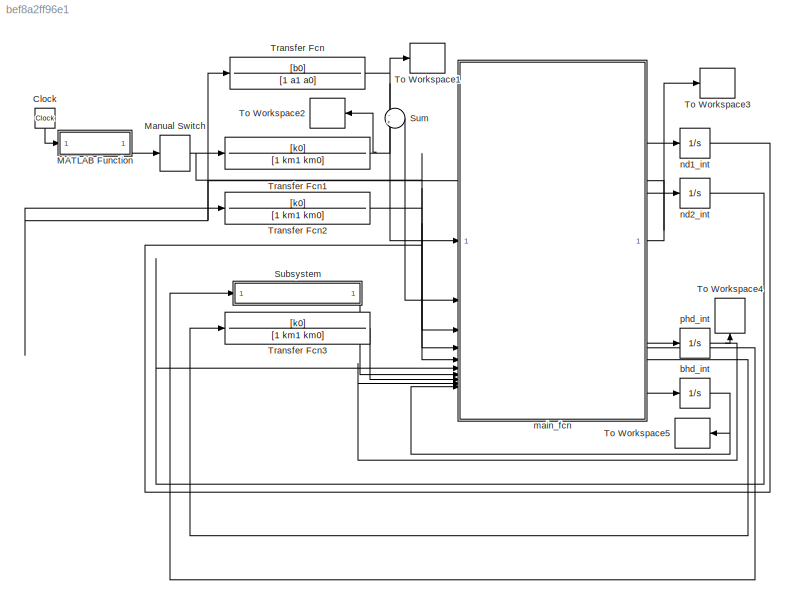
MODEL slx_bef8a2ff96e1
KIND model
CONFIG AbsTol = auto
CONFIG EnableMultiTasking = off
CONFIG FixedStep = 1e-3
CONFIG InitFcn = % a0=9; % (1),(2)\na0=-9; % (3)\n% a1=6; % (1),(2)\na1=-6; % (3)\nb0=9;\nbmin=1;\nkm1=6;\nkm0=9;\nk0=1;
CONFIG MaxStep = auto
CONFIG MinStep = auto
CONFIG RelTol = 1e-3
CONFIG SampleTimeConstraint = Unconstrained
CONFIG SolverName = FixedStepAuto
CONFIG StartTime = 0.0
CONFIG StopTime = 100000.0
BLOCK [Clock] Clock
  NameLocation = left
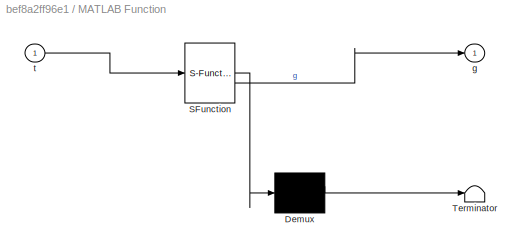
BLOCK [SubSystem] MATLAB Function
  ErrorFcn = Stateflow.Translate.translate
  PermitHierarchicalResolution = ExplicitOnly
  SFBlockType = MATLAB Function
  TreatAsAtomicUnit = on
BLOCK [Demux] MATLAB Function/ Demux 
  Outputs = 1
BLOCK [S-Function] MATLAB Function/ SFunction 
  EnableBusSupport = on
  FunctionName = sf_sfun
  PortCounts = [1 2]
  SFcnIsStateOwnerBlock = off
  SFunctionDeploymentMode = off
  Tag = Stateflow S-Function 2
BLOCK [Terminator] MATLAB Function/ Terminator 
BLOCK [Outport] MATLAB Function/g
BLOCK [Inport] MATLAB Function/t
BLOCK [ManualSwitch] Manual Switch
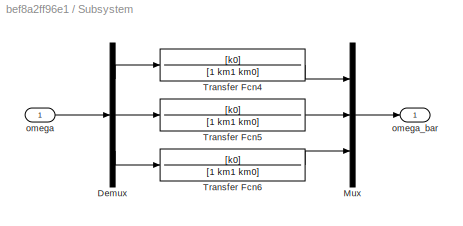
BLOCK [SubSystem] Subsystem
BLOCK [Demux] Subsystem/Demux
  Outputs = 3
BLOCK [Mux] Subsystem/Mux
  DisplayOption = bar
  Inputs = 3
BLOCK [TransferFcn] Subsystem/Transfer Fcn4
  Denominator = [1 km1 km0]
  Numerator = [k0]
BLOCK [TransferFcn] Subsystem/Transfer Fcn5
  Denominator = [1 km1 km0]
  Numerator = [k0]
BLOCK [TransferFcn] Subsystem/Transfer Fcn6
  Denominator = [1 km1 km0]
  Numerator = [k0]
BLOCK [Inport] Subsystem/omega
BLOCK [Outport] Subsystem/omega_bar
BLOCK [Sum] Sum
  Inputs = -+
BLOCK [ToWorkspace] To Workspace1
  FixptAsFi = on
  MaxDataPoints = inf
  SampleTime = -1
  SaveFormat = Structure With Time
  VariableName = y
BLOCK [ToWorkspace] To Workspace2
  FixptAsFi = on
  MaxDataPoints = inf
  NameLocation = top
  SampleTime = -1
  SaveFormat = Structure With Time
  VariableName = ym
BLOCK [ToWorkspace] To Workspace3
  FixptAsFi = on
  MaxDataPoints = inf
  SampleTime = -1
  SaveFormat = Structure With Time
  VariableName = u
BLOCK [ToWorkspace] To Workspace4
  FixptAsFi = on
  MaxDataPoints = inf
  NameLocation = right
  SampleTime = -1
  SaveFormat = Structure With Time
  VariableName = ph
BLOCK [ToWorkspace] To Workspace5
  FixptAsFi = on
  MaxDataPoints = inf
  NameLocation = top
  SampleTime = -1
  SaveFormat = Structure With Time
  VariableName = b0h
BLOCK [TransferFcn] Transfer Fcn
  Denominator = [1 a1 a0]
  Numerator = [b0]
BLOCK [TransferFcn] Transfer Fcn1
  Denominator = [1 km1 km0]
  Numerator = [k0]
BLOCK [TransferFcn] Transfer Fcn2
  Denominator = [1 km1 km0]
  Numerator = [k0]
BLOCK [TransferFcn] Transfer Fcn3
  Denominator = [1 km1 km0]
  Numerator = [k0]
BLOCK [Integrator] bhd_int
  InitialCondition = 10
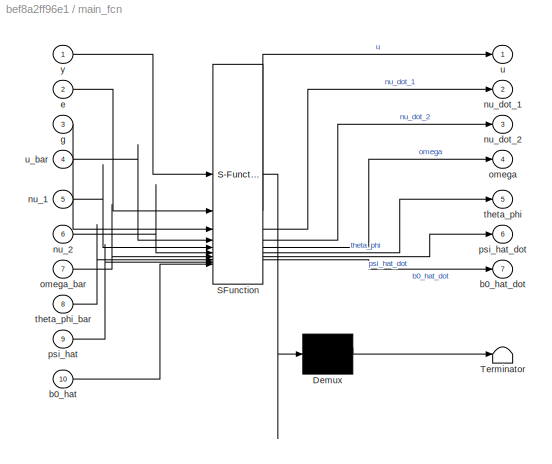
BLOCK [SubSystem] main_fcn
  ErrorFcn = Stateflow.Translate.translate
  PermitHierarchicalResolution = ExplicitOnly
  SFBlockType = MATLAB Function
  TreatAsAtomicUnit = on
BLOCK [Demux] main_fcn/ Demux 
  Outputs = 1
BLOCK [S-Function] main_fcn/ SFunction 
  EnableBusSupport = on
  FunctionName = sf_sfun
  Parameters = bmin,k0
  PortCounts = [10 8]
  SFcnIsStateOwnerBlock = off
  SFunctionDeploymentMode = off
  Tag = Stateflow S-Function 3
BLOCK [Terminator] main_fcn/ Terminator 
BLOCK [Inport] main_fcn/b0_hat
  Port = 10
BLOCK [Outport] main_fcn/b0_hat_dot
  Port = 7
BLOCK [Inport] main_fcn/e
  Port = 2
BLOCK [Inport] main_fcn/g
  Port = 3
BLOCK [Inport] main_fcn/nu_1
  Port = 5
BLOCK [Inport] main_fcn/nu_2
  Port = 6
BLOCK [Outport] main_fcn/nu_dot_1
  Port = 2
BLOCK [Outport] main_fcn/nu_dot_2
  Port = 3
BLOCK [Outport] main_fcn/omega
  Port = 4
BLOCK [Inport] main_fcn/omega_bar
  Port = 7
BLOCK [Inport] main_fcn/psi_hat
  Port = 9
BLOCK [Outport] main_fcn/psi_hat_dot
  Port = 6
BLOCK [Outport] main_fcn/theta_phi
  Port = 5
BLOCK [Inport] main_fcn/theta_phi_bar
  Port = 8
BLOCK [Outport] main_fcn/u
BLOCK [Inport] main_fcn/u_bar
  Port = 4
BLOCK [Inport] main_fcn/y
BLOCK [Integrator] nd1_int
BLOCK [Integrator] nd2_int
BLOCK [Integrator] phd_int
  InitialCondition = [0;0;0]
LINE Clock:1 -> MATLAB Function:1
LINE MATLAB Function:1 -> Manual Switch:1
NET Manual Switch:1 -> Transfer Fcn1:1, main_fcn:3
LINE Subsystem/Demux:1 -> Subsystem/Transfer Fcn4:1
LINE Subsystem/Demux:2 -> Subsystem/Transfer Fcn5:1
LINE Subsystem/Demux:3 -> Subsystem/Transfer Fcn6:1
LINE Subsystem/Mux:1 -> Subsystem/omega_bar:1
LINE Subsystem/Transfer Fcn4:1 -> Subsystem/Mux:1
LINE Subsystem/Transfer Fcn5:1 -> Subsystem/Mux:2
LINE Subsystem/Transfer Fcn6:1 -> Subsystem/Mux:3
LINE Subsystem/omega:1 -> Subsystem/Demux:1
LINE Subsystem:1 -> main_fcn:7
LINE Sum:1 -> main_fcn:2
NET Transfer Fcn1:1 -> Sum:2, To Workspace2:1
LINE Transfer Fcn2:1 -> main_fcn:4
LINE Transfer Fcn3:1 -> main_fcn:8
NET Transfer Fcn:1 -> Sum:1, To Workspace1:1, main_fcn:1
NET bhd_int:1 -> To Workspace5:1, main_fcn:10
NET main_fcn:1 -> To Workspace3:1, Transfer Fcn2:1, Transfer Fcn:1
LINE main_fcn:2 -> nd1_int:1
LINE main_fcn:3 -> nd2_int:1
LINE main_fcn:4 -> Subsystem:1
LINE main_fcn:5 -> Transfer Fcn3:1
LINE main_fcn:6 -> phd_int:1
LINE main_fcn:7 -> bhd_int:1
LINE nd1_int:1 -> main_fcn:5
LINE nd2_int:1 -> main_fcn:6
NET phd_int:1 -> To Workspace4:1, main_fcn:9
note: NET lines group one-source signal fan-out (src -> all destinations, sorted); 1:1 wires keep LINE
CHART MATLAB Function states=1 transitions=1
  STATE_LABEL 'eML_blk_kernel()'
  STATE_LABEL 'SCRIPT:\nfunction g = set_signal(t)\n\ng = 0.4*sin(3*t)+cos(0.1*t);\n'
CHART main_fcn states=1 transitions=1
  STATE_LABEL 'eML_blk_kernel()'
  STATE_LABEL "SCRIPT:\nfunction [u,nu_dot_1,nu_dot_2,omega,theta_phi, ...\n    psi_hat_dot,b0_hat_dot] = fcn(y,e,g,u_bar, ...\n    nu_1, nu_2,omega_bar,theta_phi_bar,...\n    psi_hat,b0_hat,k0, bmin)\nLambda = -k0;\nomega = [nu_1', nu_2', y]';\n\nu = (-psi_hat'*omega + k0*g)/b0_hat;\n\nnu_dot_1 = Lambda*nu_1 + u;\nnu_dot_2 = Lambda*nu_2 + y;\n\ntheta_hat = [psi_hat; b0_hat];\nomega_bar_p = [-omega_bar; -u_bar];\n\nomega_p = [-...<+360ch>"
CHART  states=0 transitions=0
CHART  states=0 transitions=0
